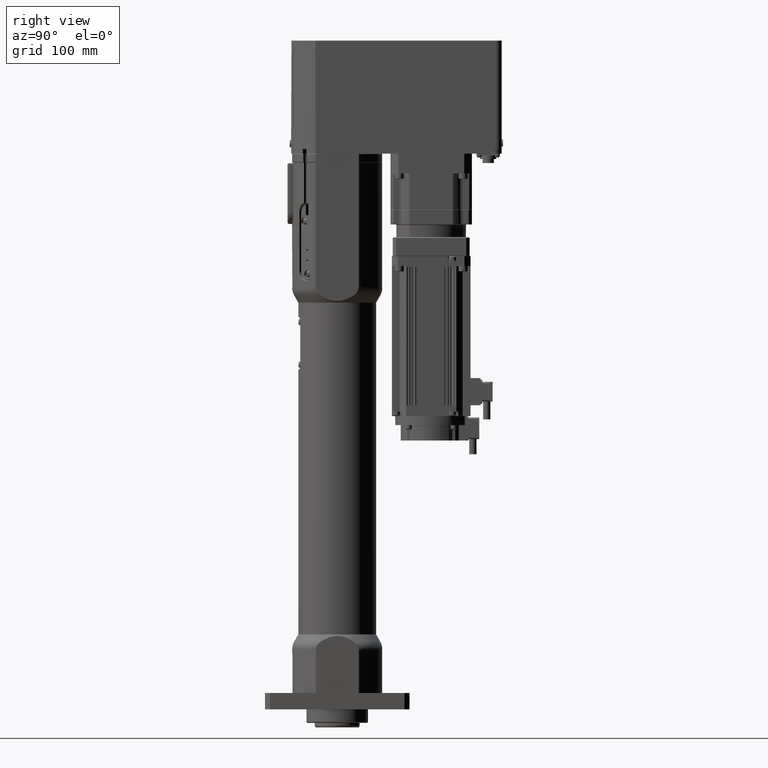
[diagram: clean part render]
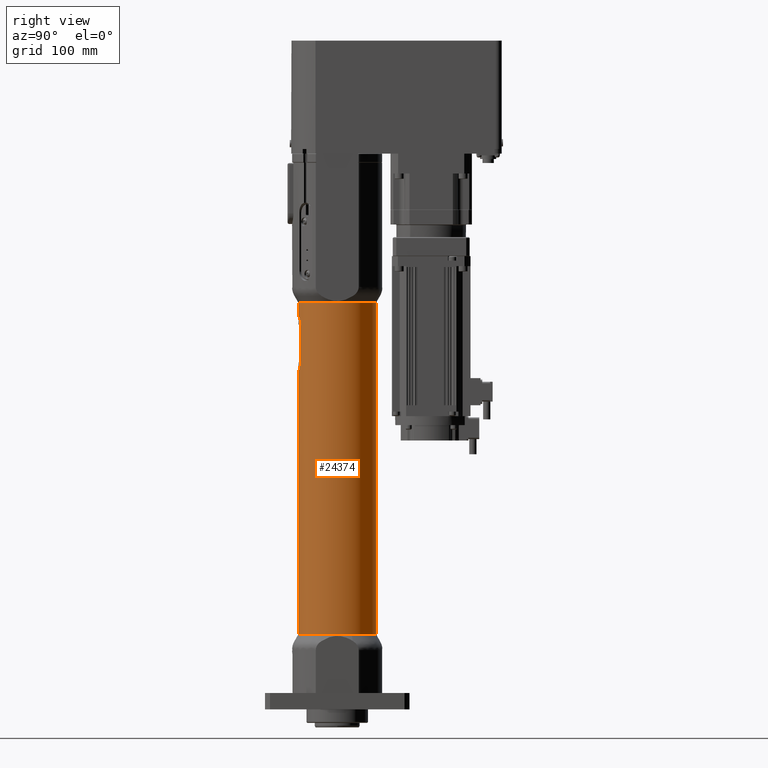
[diagram: same view with one face highlighted and labeled with its STEP entity id]
A machine part, right view. The second image highlights one B-rep face of the part: STEP entity #24374.
In plain terms, the highlighted cylindrical surface (bore or boss wall) has radius 43 mm, axis along (0, 0, 1).
Its self-contained STEP definition (entity closure, byte-faithful):
#499=B_SPLINE_CURVE_WITH_KNOTS('',3,(#40176,#40177,#40178,#40179,#40180,
#40181,#40182,#40183,#40184,#40185),.UNSPECIFIED.,.F.,.F.,(4,2,2,2,4),(0.757214472182181,
0.950993686237802,1.14477290029342,1.3333383343958,1.52190376849818),
 .UNSPECIFIED.);
#500=B_SPLINE_CURVE_WITH_KNOTS('',3,(#40189,#40190,#40191,#40192,#40193,
#40194,#40195,#40196,#40197,#40198),.UNSPECIFIED.,.F.,.F.,(4,2,2,2,4),(1.52190365703579,
1.71046909113817,1.89903452524054,2.09281373929616,2.28659295335179),
 .UNSPECIFIED.);
#501=B_SPLINE_CURVE_WITH_KNOTS('',3,(#40202,#40203,#40204,#40205,#40206,
#40207,#40208,#40209,#40210,#40211),.UNSPECIFIED.,.F.,.F.,(4,2,2,2,4),(-0.764689296315999,
-0.570910082260379,-0.37713086820476,-0.18856543410238,0.),
 .UNSPECIFIED.);
#502=B_SPLINE_CURVE_WITH_KNOTS('',3,(#40214,#40215,#40216,#40217,#40218,
#40219,#40220,#40221,#40222,#40223),.UNSPECIFIED.,.F.,.F.,(4,2,2,2,4),(0.,
0.188565434102376,0.377130868204753,0.570910082260372,0.764689296315991),
 .UNSPECIFIED.);
#1980=LINE('',#40187,#3735);
#1981=LINE('',#40213,#3736);
#3735=VECTOR('',#32332,10.);
#3736=VECTOR('',#32335,10.);
#5108=FACE_BOUND('',#7781,.T.);
#5109=FACE_BOUND('',#7782,.T.);
#6228=FACE_OUTER_BOUND('',#7780,.T.);
#7780=EDGE_LOOP('',(#19592));
#7781=EDGE_LOOP('',(#19593,#19594,#19595,#19596,#19597,#19598,#19599,#19600));
#7782=EDGE_LOOP('',(#19601));
#9240=CIRCLE('',#26652,43.);
#9241=CIRCLE('',#26653,43.);
#9242=CIRCLE('',#26654,43.);
#9243=CIRCLE('',#26655,43.);
#11122=VERTEX_POINT('',#40170);
#11123=VERTEX_POINT('',#40172);
#11124=VERTEX_POINT('',#40173);
#11125=VERTEX_POINT('',#40175);
#11126=VERTEX_POINT('',#40186);
#11127=VERTEX_POINT('',#40188);
#11128=VERTEX_POINT('',#40199);
#11129=VERTEX_POINT('',#40201);
#11130=VERTEX_POINT('',#40212);
#11131=VERTEX_POINT('',#40224);
#14111=EDGE_CURVE('',#11122,#11122,#9240,.T.);
#14112=EDGE_CURVE('',#11123,#11124,#9241,.T.);
#14113=EDGE_CURVE('',#11124,#11125,#499,.T.);
#14114=EDGE_CURVE('',#11125,#11126,#1980,.T.);
#14115=EDGE_CURVE('',#11126,#11127,#500,.T.);
#14116=EDGE_CURVE('',#11127,#11128,#9242,.T.);
#14117=EDGE_CURVE('',#11128,#11129,#501,.T.);
#14118=EDGE_CURVE('',#11129,#11130,#1981,.T.);
#14119=EDGE_CURVE('',#11130,#11123,#502,.T.);
#14120=EDGE_CURVE('',#11131,#11131,#9243,.T.);
#19592=ORIENTED_EDGE('',*,*,#14111,.F.);
#19593=ORIENTED_EDGE('',*,*,#14112,.T.);
#19594=ORIENTED_EDGE('',*,*,#14113,.T.);
#19595=ORIENTED_EDGE('',*,*,#14114,.T.);
#19596=ORIENTED_EDGE('',*,*,#14115,.T.);
#19597=ORIENTED_EDGE('',*,*,#14116,.T.);
#19598=ORIENTED_EDGE('',*,*,#14117,.T.);
#19599=ORIENTED_EDGE('',*,*,#14118,.T.);
#19600=ORIENTED_EDGE('',*,*,#14119,.T.);
#19601=ORIENTED_EDGE('',*,*,#14120,.F.);
#21972=CYLINDRICAL_SURFACE('',#26651,43.);
#24374=ADVANCED_FACE('',(#6228,#5108,#5109),#21972,.T.);
#26651=AXIS2_PLACEMENT_3D('',#40169,#32326,#32327);
#26652=AXIS2_PLACEMENT_3D('',#40171,#32328,#32329);
#26653=AXIS2_PLACEMENT_3D('',#40174,#32330,#32331);
#26654=AXIS2_PLACEMENT_3D('',#40200,#32333,#32334);
#26655=AXIS2_PLACEMENT_3D('',#40225,#32336,#32337);
#32326=DIRECTION('center_axis',(1.58950948173311E-13,3.86420372195439E-16,
1.));
#32327=DIRECTION('ref_axis',(2.34997206878979E-15,1.,-3.86420372195812E-16));
#32328=DIRECTION('center_axis',(1.58950948173311E-13,3.86420372195439E-16,
1.));
#32329=DIRECTION('ref_axis',(2.34997206878979E-15,1.,-3.86420372195812E-16));
#32330=DIRECTION('center_axis',(1.58950948173311E-13,3.86420372195439E-16,
1.));
#32331=DIRECTION('ref_axis',(2.34997206878979E-15,1.,-3.86420372195812E-16));
#32332=DIRECTION('',(-1.58950948173311E-13,-3.86420372195439E-16,-1.));
#32333=DIRECTION('center_axis',(-1.58950948173311E-13,-3.86420372195439E-16,
-1.));
#32334=DIRECTION('ref_axis',(2.34997206878979E-15,1.,-3.86420372195812E-16));
#32335=DIRECTION('',(1.58950948173311E-13,3.86420372195439E-16,1.));
#32336=DIRECTION('center_axis',(-1.58950948173311E-13,-3.86420372195439E-16,
-1.));
#32337=DIRECTION('ref_axis',(2.34997206878979E-15,1.,-3.86420372195812E-16));
#40169=CARTESIAN_POINT('Origin',(1.31929326935572E-11,2.51173241927035E-14,
83.));
#40170=CARTESIAN_POINT('',(7.14321478554408E-11,-42.9999999999998,450.));
#40171=CARTESIAN_POINT('Origin',(7.15279306731625E-11,1.6693360078843E-13,
450.));
#40172=CARTESIAN_POINT('',(-7.9999999999311,-42.249260348555,434.000000000001));
#40173=CARTESIAN_POINT('',(8.00000000006887,-42.2492603485551,433.999999999999));
#40174=CARTESIAN_POINT('Origin',(6.89847155023895E-11,1.60750874833303E-13,
434.));
#40175=CARTESIAN_POINT('',(13.0000000000681,-40.9878030638383,428.999999999998));
#40176=CARTESIAN_POINT('Ctrl Pts',(8.00000000006886,-42.2492603485551,433.999999999999));
#40177=CARTESIAN_POINT('Ctrl Pts',(8.63465336943122,-42.1290871925516,433.999999999999));
#40178=CARTESIAN_POINT('Ctrl Pts',(9.30860759488277,-41.985167261595,433.872089745808));
#40179=CARTESIAN_POINT('Ctrl Pts',(10.5461666990774,-41.6915196813123,433.355082905857));
#40180=CARTESIAN_POINT('Ctrl Pts',(11.1099853873718,-41.5425357641226,432.96607598726));
#40181=CARTESIAN_POINT('Ctrl Pts',(11.9892737013415,-41.2972154699088,432.076708351429));
#40182=CARTESIAN_POINT('Ctrl Pts',(12.3687009548437,-41.1835541289459,431.520486936867));
#40183=CARTESIAN_POINT('Ctrl Pts',(12.8741623656876,-41.0283540801928,430.296511575115));
#40184=CARTESIAN_POINT('Ctrl Pts',(13.0000000000682,-40.9878030638383,429.628551447006));
#40185=CARTESIAN_POINT('Ctrl Pts',(13.0000000000681,-40.9878030638383,428.999999999998));
#40186=CARTESIAN_POINT('',(13.0000000000605,-40.9878030638383,380.999999999998));
#40187=CARTESIAN_POINT('',(13.0000000000132,-40.9878030638384,82.999999999998));
#40188=CARTESIAN_POINT('',(8.00000000005966,-42.2492603485551,375.999999999999));
#40189=CARTESIAN_POINT('Ctrl Pts',(13.0000000000605,-40.9878030638383,380.999999999998));
#40190=CARTESIAN_POINT('Ctrl Pts',(13.0000000000604,-40.9878030638383,380.37144855299));
#40191=CARTESIAN_POINT('Ctrl Pts',(12.8741623656795,-41.0283540801928,379.70348842488));
#40192=CARTESIAN_POINT('Ctrl Pts',(12.3687009548352,-41.1835541289459,378.479513063128));
#40193=CARTESIAN_POINT('Ctrl Pts',(11.9892737013329,-41.2972154699088,377.923291648567));
#40194=CARTESIAN_POINT('Ctrl Pts',(11.1099853873629,-41.5425357641227,377.033924012736));
#40195=CARTESIAN_POINT('Ctrl Pts',(10.5461666990684,-41.6915196813123,376.64491709414));
#40196=CARTESIAN_POINT('Ctrl Pts',(9.30860759487361,-41.9851672615951,376.127910254189));
#40197=CARTESIAN_POINT('Ctrl Pts',(8.63465336942201,-42.1290871925516,375.999999999999));
#40198=CARTESIAN_POINT('Ctrl Pts',(8.00000000005966,-42.2492603485551,375.999999999999));
#40199=CARTESIAN_POINT('',(-7.99999999994033,-42.2492603485551,376.000000000001));
#40200=CARTESIAN_POINT('Origin',(5.97655605083374E-11,1.38338493245967E-13,
376.));
#40201=CARTESIAN_POINT('',(-12.9999999999395,-40.9878030638382,381.000000000002));
#40202=CARTESIAN_POINT('Ctrl Pts',(-7.99999999994033,-42.2492603485551,
376.000000000001));
#40203=CARTESIAN_POINT('Ctrl Pts',(-8.63465336930268,-42.1290871925516,
376.000000000001));
#40204=CARTESIAN_POINT('Ctrl Pts',(-9.30860759475421,-41.985167261595,376.127910254192));
#40205=CARTESIAN_POINT('Ctrl Pts',(-10.5461666989489,-41.6915196813122,
376.644917094143));
#40206=CARTESIAN_POINT('Ctrl Pts',(-11.1099853872433,-41.5425357641226,
377.03392401274));
#40207=CARTESIAN_POINT('Ctrl Pts',(-11.989273701213,-41.2972154699087,377.923291648571));
#40208=CARTESIAN_POINT('Ctrl Pts',(-12.3687009547151,-41.1835541289459,
378.479513063133));
#40209=CARTESIAN_POINT('Ctrl Pts',(-12.874162365559,-41.0283540801927,379.703488424885));
#40210=CARTESIAN_POINT('Ctrl Pts',(-12.9999999999397,-40.9878030638382,
380.371448552994));
#40211=CARTESIAN_POINT('Ctrl Pts',(-12.9999999999396,-40.9878030638382,
381.000000000002));
#40212=CARTESIAN_POINT('',(-12.9999999999319,-40.9878030638382,429.000000000002));
#40213=CARTESIAN_POINT('',(-12.999999999987,-40.9878030638383,83.0000000000021));
#40214=CARTESIAN_POINT('Ctrl Pts',(-12.9999999999319,-40.9878030638382,
429.000000000002));
#40215=CARTESIAN_POINT('Ctrl Pts',(-12.9999999999318,-40.9878030638382,
429.62855144701));
#40216=CARTESIAN_POINT('Ctrl Pts',(-12.8741623655509,-41.0283540801927,
430.296511575119));
#40217=CARTESIAN_POINT('Ctrl Pts',(-12.3687009547067,-41.1835541289458,
431.520486936871));
#40218=CARTESIAN_POINT('Ctrl Pts',(-11.9892737012043,-41.2972154699087,
432.076708351433));
#40219=CARTESIAN_POINT('Ctrl Pts',(-11.1099853872343,-41.5425357641226,
432.966075987264));
#40220=CARTESIAN_POINT('Ctrl Pts',(-10.5461666989398,-41.6915196813122,
433.35508290586));
#40221=CARTESIAN_POINT('Ctrl Pts',(-9.30860759474496,-41.985167261595,433.872089745811));
#40222=CARTESIAN_POINT('Ctrl Pts',(-8.63465336929345,-42.1290871925515,
434.000000000001));
#40223=CARTESIAN_POINT('Ctrl Pts',(-7.9999999999311,-42.249260348555,434.000000000001));
#40224=CARTESIAN_POINT('',(1.30971498758356E-11,-43.,83.));
#40225=CARTESIAN_POINT('Origin',(1.31929326935572E-11,2.51173241927035E-14,
83.));